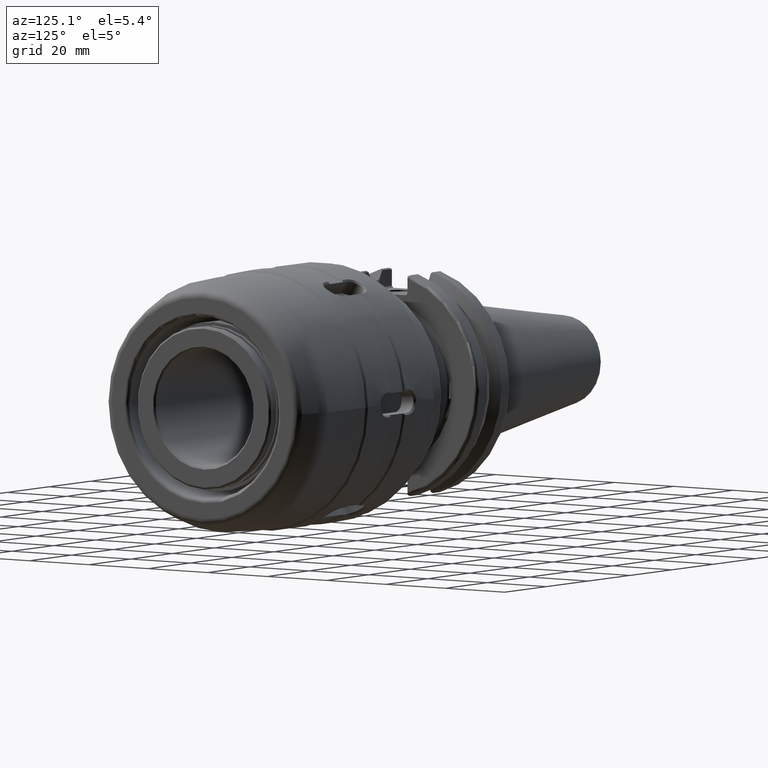
[diagram: clean part render]
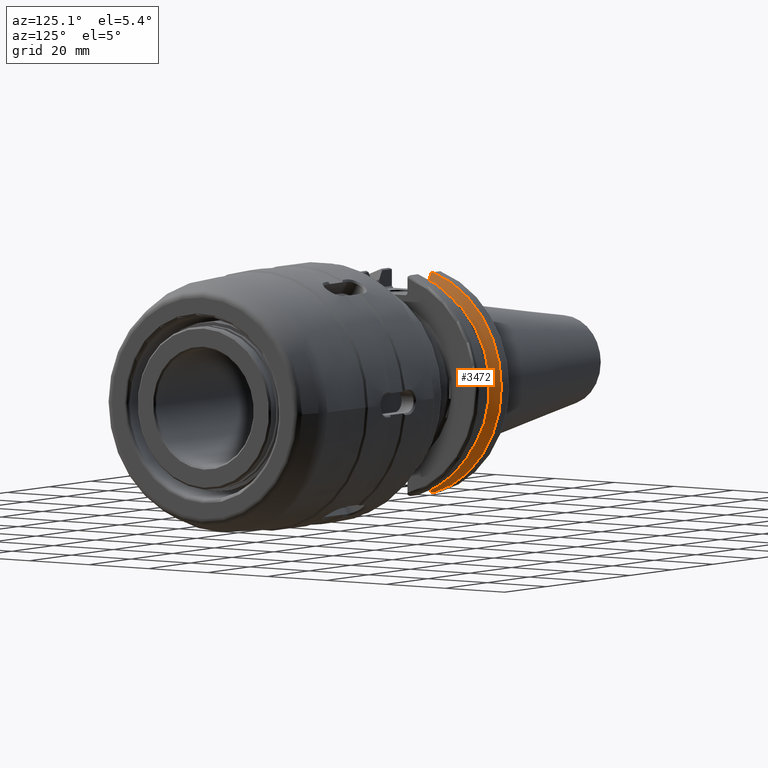
[diagram: same view with one face highlighted and labeled with its STEP entity id]
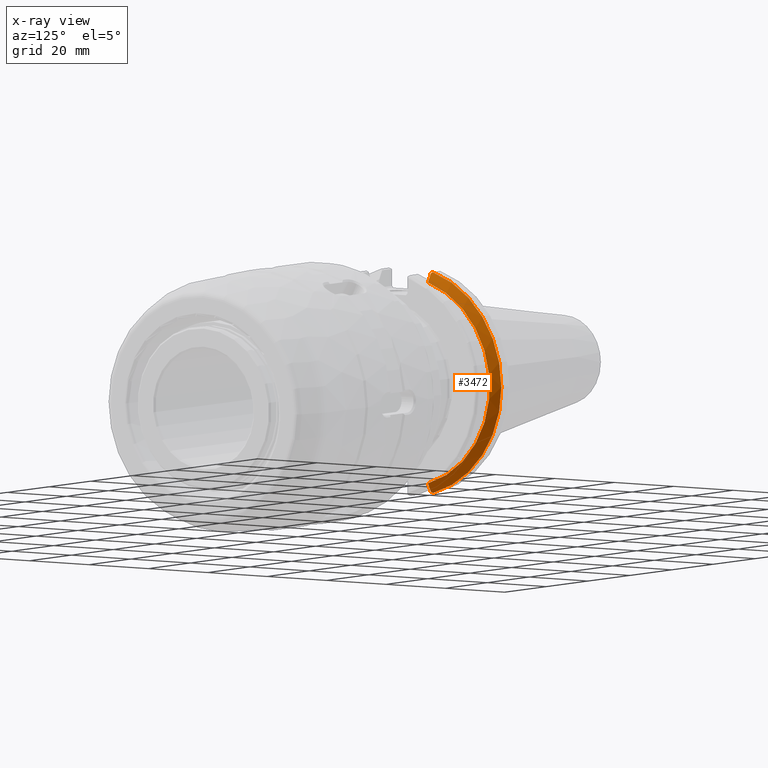
[diagram: x-ray of the same camera — body ghosted, the highlighted face saturated]
A machine part, auxiliary view. The second image highlights one B-rep face of the part: STEP entity #3472.
The next image is the same camera in x-ray: the body ghosted, the highlighted face saturated — about 0% of this face is hidden behind the body in this view.
In plain terms, the highlighted conical surface has half-angle 60 deg.
Its self-contained STEP definition (entity closure, byte-faithful):
#42=(
BOUNDED_CURVE()
B_SPLINE_CURVE(2,(#5404,#5405,#5406),.UNSPECIFIED.,.F.,.F.)
B_SPLINE_CURVE_WITH_KNOTS((3,3),(0.,0.276549142796136),.UNSPECIFIED.)
CURVE()
GEOMETRIC_REPRESENTATION_ITEM()
RATIONAL_B_SPLINE_CURVE((1.,1.00095203903316,1.00031614444813))
REPRESENTATION_ITEM('')
);
#50=(
BOUNDED_CURVE()
B_SPLINE_CURVE(2,(#5587,#5588,#5589),.UNSPECIFIED.,.F.,.F.)
B_SPLINE_CURVE_WITH_KNOTS((3,3),(0.,0.0639048713676127),.UNSPECIFIED.)
CURVE()
GEOMETRIC_REPRESENTATION_ITEM()
RATIONAL_B_SPLINE_CURVE((1.,1.00028444218281,1.00047644010571))
REPRESENTATION_ITEM('')
);
#52=(
BOUNDED_CURVE()
B_SPLINE_CURVE(2,(#5637,#5638,#5639),.UNSPECIFIED.,.F.,.F.)
B_SPLINE_CURVE_WITH_KNOTS((3,3),(0.0550586467391943,0.33160778953585),
 .UNSPECIFIED.)
CURVE()
GEOMETRIC_REPRESENTATION_ITEM()
RATIONAL_B_SPLINE_CURVE((1.00031614445155,1.00095203904346,1.))
REPRESENTATION_ITEM('')
);
#56=(
BOUNDED_CURVE()
B_SPLINE_CURVE(2,(#5665,#5666,#5667),.UNSPECIFIED.,.F.,.F.)
B_SPLINE_CURVE_WITH_KNOTS((3,3),(0.329353533631191,0.393258405001024),
 .UNSPECIFIED.)
CURVE()
GEOMETRIC_REPRESENTATION_ITEM()
RATIONAL_B_SPLINE_CURVE((1.00047644010564,1.00028444218277,1.))
REPRESENTATION_ITEM('')
);
#365=FACE_OUTER_BOUND('',#572,.T.);
#572=EDGE_LOOP('',(#2685,#2686,#2687,#2688,#2689,#2690));
#1286=CIRCLE('',#3833,31.75);
#1291=CIRCLE('',#3841,28.9593772964944);
#1494=VERTEX_POINT('',#5401);
#1495=VERTEX_POINT('',#5403);
#1533=VERTEX_POINT('',#5585);
#1547=VERTEX_POINT('',#5634);
#1548=VERTEX_POINT('',#5636);
#1552=VERTEX_POINT('',#5664);
#1886=EDGE_CURVE('',#1495,#1494,#42,.T.);
#1938=EDGE_CURVE('',#1533,#1494,#50,.T.);
#1960=EDGE_CURVE('',#1548,#1547,#52,.T.);
#1970=EDGE_CURVE('',#1548,#1552,#56,.T.);
#1972=EDGE_CURVE('',#1533,#1552,#1286,.T.);
#1979=EDGE_CURVE('',#1495,#1547,#1291,.T.);
#2685=ORIENTED_EDGE('',*,*,#1938,.F.);
#2686=ORIENTED_EDGE('',*,*,#1972,.T.);
#2687=ORIENTED_EDGE('',*,*,#1970,.F.);
#2688=ORIENTED_EDGE('',*,*,#1960,.T.);
#2689=ORIENTED_EDGE('',*,*,#1979,.F.);
#2690=ORIENTED_EDGE('',*,*,#1886,.T.);
#3379=CONICAL_SURFACE('',#3840,30.3546886482472,1.0471975511966);
#3472=ADVANCED_FACE('',(#365),#3379,.T.);
#3833=AXIS2_PLACEMENT_3D('',#5670,#4473,#4474);
#3840=AXIS2_PLACEMENT_3D('',#5684,#4489,#4490);
#3841=AXIS2_PLACEMENT_3D('',#5685,#4491,#4492);
#4473=DIRECTION('center_axis',(1.,0.,0.));
#4474=DIRECTION('ref_axis',(0.,0.,-1.));
#4489=DIRECTION('center_axis',(-1.,0.,0.));
#4490=DIRECTION('ref_axis',(0.,1.,0.));
#4491=DIRECTION('center_axis',(1.,0.,0.));
#4492=DIRECTION('ref_axis',(0.,0.,-1.));
#5401=CARTESIAN_POINT('',(7.88668530351257,8.19,-30.1755016258903));
#5403=CARTESIAN_POINT('',(9.2191,8.19,-27.7771386827498));
#5404=CARTESIAN_POINT('Ctrl Pts',(9.2191,8.19,-27.7771386827498));
#5405=CARTESIAN_POINT('Ctrl Pts',(8.58046356152393,8.19,-28.9303689539705));
#5406=CARTESIAN_POINT('Ctrl Pts',(7.88668530351257,8.19,-30.1755016258903));
#5585=CARTESIAN_POINT('',(7.60793323092436,8.67204822802685,-30.5427254764662));
#5587=CARTESIAN_POINT('Ctrl Pts',(7.60793323092436,8.67204822802686,-30.5427254764662));
#5588=CARTESIAN_POINT('Ctrl Pts',(7.74899148121627,8.42917748262647,-30.357706789263));
#5589=CARTESIAN_POINT('Ctrl Pts',(7.88668530351257,8.19,-30.1755016258903));
#5634=CARTESIAN_POINT('',(9.2191,8.19,27.7771386827498));
#5636=CARTESIAN_POINT('',(7.88668530351256,8.19,30.1755016258903));
#5637=CARTESIAN_POINT('Ctrl Pts',(7.88668530351256,8.19,30.1755016258903));
#5638=CARTESIAN_POINT('Ctrl Pts',(8.58046356152345,8.19,28.9303689539713));
#5639=CARTESIAN_POINT('Ctrl Pts',(9.2191,8.19,27.7771386827498));
#5664=CARTESIAN_POINT('',(7.60793323092436,8.67204822802685,30.5427254764662));
#5665=CARTESIAN_POINT('Ctrl Pts',(7.88668530351256,8.19,30.1755016258903));
#5666=CARTESIAN_POINT('Ctrl Pts',(7.74899148121158,8.42917748263469,30.3577067892692));
#5667=CARTESIAN_POINT('Ctrl Pts',(7.60793323092436,8.67204822802686,30.5427254764662));
#5670=CARTESIAN_POINT('Origin',(7.60793323092436,0.,0.));
#5684=CARTESIAN_POINT('Origin',(8.41351661546218,0.,0.));
#5685=CARTESIAN_POINT('Origin',(9.2191,0.,0.));